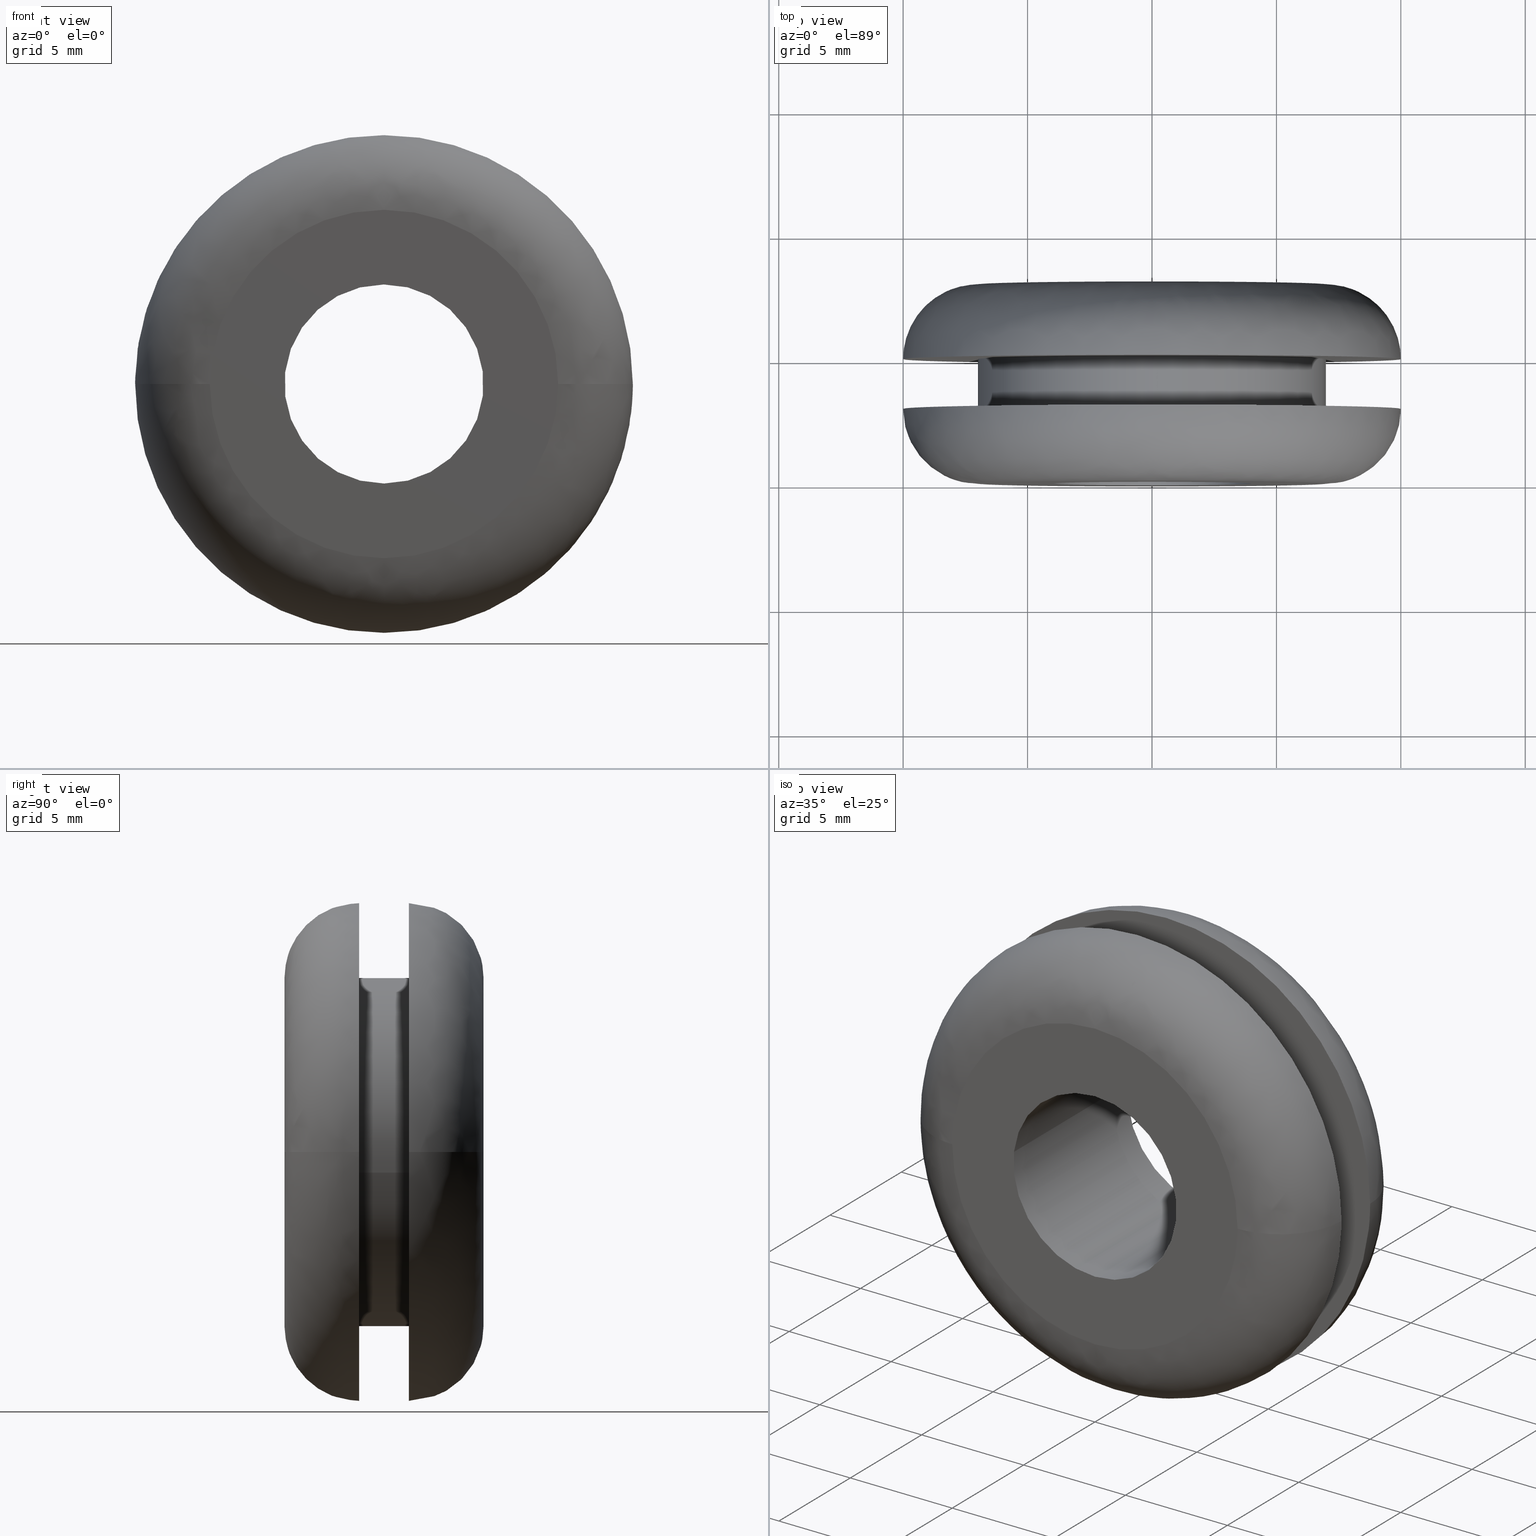
[diagram: canonical four-view strip — front | top / right | iso, engineering-drawing reading convention]
A machine part, canonical four-view strip (front | top / right | iso — engineering-drawing reading convention). The complete STEP part file that produces these views, byte-faithful:
ISO-10303-21;
HEADER;

FILE_DESCRIPTION( (''), '2;1');
FILE_NAME ('PC50.12492.TM_B_8_2_CRUL_3541.stp','2019-12-19T13:38:04',(''),(''),'spGate 15.6.1','','');

FILE_SCHEMA (('AUTOMOTIVE_DESIGN'));
ENDSEC;

DATA;
#10=(GEOMETRIC_REPRESENTATION_CONTEXT(3) GLOBAL_UNCERTAINTY_ASSIGNED_CONTEXT((#11)) GLOBAL_UNIT_ASSIGNED_CONTEXT((#12,#13,#14)) REPRESENTATION_CONTEXT('ID1','3D'));
#11=UNCERTAINTY_MEASURE_WITH_UNIT(LENGTH_MEASURE(0.01),#15,'DISTANCE_ACCURACY_VALUE','Maximum model space distance between geometric entities at asserted connectivities');
#12=(NAMED_UNIT(*) SI_UNIT($,.STERADIAN.) SOLID_ANGLE_UNIT());
#13=(CONVERSION_BASED_UNIT('DEGREE',#16) NAMED_UNIT(#17) PLANE_ANGLE_UNIT());
#14=(LENGTH_UNIT() NAMED_UNIT(*) SI_UNIT(.MILLI.,.METRE.));
#15=(LENGTH_UNIT() NAMED_UNIT(*) SI_UNIT(.MILLI.,.METRE.));
#16=PLANE_ANGLE_MEASURE_WITH_UNIT(PLANE_ANGLE_MEASURE(0.01745329252),#18);
#17=DIMENSIONAL_EXPONENTS(0.0,0.0,0.0,0.0,0.0,0.0,0.0);
#18=(NAMED_UNIT(*) PLANE_ANGLE_UNIT() SI_UNIT($,.RADIAN.));
#19=MANIFOLD_SOLID_BREP('TM_B_8_2',#31);
#20=ADVANCED_BREP_SHAPE_REPRESENTATION('',(#19),#10);
#21=APPLICATION_CONTEXT('');
#22=APPLICATION_PROTOCOL_DEFINITION('International Standard','automotive_design',1999,#21);
#23=PRODUCT_DEFINITION_CONTEXT('',#21,'design');
#24=PRODUCT_CONTEXT('',#21,'mechanical');
#25=PRODUCT('','','',(#24));
#26=PRODUCT_DEFINITION_FORMATION_WITH_SPECIFIED_SOURCE('','',#25,.NOT_KNOWN.);
#27=PRODUCT_RELATED_PRODUCT_CATEGORY('tool','tool',(#25));
#28=PRODUCT_DEFINITION('','',#26,#23);
#29=PRODUCT_DEFINITION_SHAPE('','',#28);
#30=SHAPE_DEFINITION_REPRESENTATION(#29,#20);
#31=CLOSED_SHELL('',(#40,#41,#42,#43,#44,#45,#46,#47,#48,#49,#50,#51));
#32=COLOUR_RGB('',0.00000000000E+000,0.00000000000E+000,0.00000000000E+000);
#33=FILL_AREA_STYLE_COLOUR('',#32);
#34=FILL_AREA_STYLE('',(#33));
#35=SURFACE_STYLE_FILL_AREA(#34);
#36=SURFACE_SIDE_STYLE('',(#35));
#37=SURFACE_STYLE_USAGE(.BOTH.,#36);
#38=PRESENTATION_STYLE_ASSIGNMENT((#37));
#39=STYLED_ITEM('',(#38),#19);
#40=ADVANCED_FACE('',(#53,#54),#52,.F.);
#41=ADVANCED_FACE('',(#64,#65),#63,.F.);
#42=ADVANCED_FACE('',(#75,#76),#74,.F.);
#43=ADVANCED_FACE('',(#86,#87),#85,.F.);
#44=ADVANCED_FACE('',(#97),#96,.T.);
#45=ADVANCED_FACE('',(#107),#106,.T.);
#46=ADVANCED_FACE('',(#117),#116,.F.);
#47=ADVANCED_FACE('',(#127),#126,.F.);
#48=ADVANCED_FACE('',(#137),#136,.T.);
#49=ADVANCED_FACE('',(#147),#146,.T.);
#50=ADVANCED_FACE('',(#157),#156,.T.);
#51=ADVANCED_FACE('',(#167),#166,.T.);
#52=PLANE('',#179);
#53=FACE_OUTER_BOUND('',#180,.T.);
#54=FACE_BOUND('',#181,.T.);
#55=COLOUR_RGB('',1.00000000000E+000,1.00000000000E+000,1.00000000000E+000);
#56=FILL_AREA_STYLE_COLOUR('',#55);
#57=FILL_AREA_STYLE('',(#56));
#58=SURFACE_STYLE_FILL_AREA(#57);
#59=SURFACE_SIDE_STYLE('',(#58));
#60=SURFACE_STYLE_USAGE(.BOTH.,#59);
#61=PRESENTATION_STYLE_ASSIGNMENT((#60));
#62=STYLED_ITEM('',(#61),#40);
#63=PLANE('',#185);
#64=FACE_OUTER_BOUND('',#186,.T.);
#65=FACE_BOUND('',#187,.T.);
#66=COLOUR_RGB('',1.00000000000E+000,1.00000000000E+000,1.00000000000E+000);
#67=FILL_AREA_STYLE_COLOUR('',#66);
#68=FILL_AREA_STYLE('',(#67));
#69=SURFACE_STYLE_FILL_AREA(#68);
#70=SURFACE_SIDE_STYLE('',(#69));
#71=SURFACE_STYLE_USAGE(.BOTH.,#70);
#72=PRESENTATION_STYLE_ASSIGNMENT((#71));
#73=STYLED_ITEM('',(#72),#41);
#74=PLANE('',#191);
#75=FACE_OUTER_BOUND('',#192,.T.);
#76=FACE_BOUND('',#193,.T.);
#77=COLOUR_RGB('',1.00000000000E+000,1.00000000000E+000,1.00000000000E+000);
#78=FILL_AREA_STYLE_COLOUR('',#77);
#79=FILL_AREA_STYLE('',(#78));
#80=SURFACE_STYLE_FILL_AREA(#79);
#81=SURFACE_SIDE_STYLE('',(#80));
#82=SURFACE_STYLE_USAGE(.BOTH.,#81);
#83=PRESENTATION_STYLE_ASSIGNMENT((#82));
#84=STYLED_ITEM('',(#83),#42);
#85=PLANE('',#197);
#86=FACE_OUTER_BOUND('',#198,.T.);
#87=FACE_BOUND('',#199,.T.);
#88=COLOUR_RGB('',1.00000000000E+000,1.00000000000E+000,1.00000000000E+000);
#89=FILL_AREA_STYLE_COLOUR('',#88);
#90=FILL_AREA_STYLE('',(#89));
#91=SURFACE_STYLE_FILL_AREA(#90);
#92=SURFACE_SIDE_STYLE('',(#91));
#93=SURFACE_STYLE_USAGE(.BOTH.,#92);
#94=PRESENTATION_STYLE_ASSIGNMENT((#93));
#95=STYLED_ITEM('',(#94),#43);
#96=CYLINDRICAL_SURFACE('',#203,7.00000000000E+000);
#97=FACE_OUTER_BOUND('',#204,.T.);
#98=COLOUR_RGB('',1.00000000000E+000,1.00000000000E+000,1.00000000000E+000);
#99=FILL_AREA_STYLE_COLOUR('',#98);
#100=FILL_AREA_STYLE('',(#99));
#101=SURFACE_STYLE_FILL_AREA(#100);
#102=SURFACE_SIDE_STYLE('',(#101));
#103=SURFACE_STYLE_USAGE(.BOTH.,#102);
#104=PRESENTATION_STYLE_ASSIGNMENT((#103));
#105=STYLED_ITEM('',(#104),#44);
#106=CYLINDRICAL_SURFACE('',#208,7.00000000000E+000);
#107=FACE_OUTER_BOUND('',#209,.T.);
#108=COLOUR_RGB('',1.00000000000E+000,1.00000000000E+000,1.00000000000E+000);
#109=FILL_AREA_STYLE_COLOUR('',#108);
#110=FILL_AREA_STYLE('',(#109));
#111=SURFACE_STYLE_FILL_AREA(#110);
#112=SURFACE_SIDE_STYLE('',(#111));
#113=SURFACE_STYLE_USAGE(.BOTH.,#112);
#114=PRESENTATION_STYLE_ASSIGNMENT((#113));
#115=STYLED_ITEM('',(#114),#45);
#116=CYLINDRICAL_SURFACE('',#213,4.00000000000E+000);
#117=FACE_OUTER_BOUND('',#214,.T.);
#118=COLOUR_RGB('',1.00000000000E+000,1.00000000000E+000,1.00000000000E+000);
#119=FILL_AREA_STYLE_COLOUR('',#118);
#120=FILL_AREA_STYLE('',(#119));
#121=SURFACE_STYLE_FILL_AREA(#120);
#122=SURFACE_SIDE_STYLE('',(#121));
#123=SURFACE_STYLE_USAGE(.BOTH.,#122);
#124=PRESENTATION_STYLE_ASSIGNMENT((#123));
#125=STYLED_ITEM('',(#124),#46);
#126=CYLINDRICAL_SURFACE('',#218,4.00000000000E+000);
#127=FACE_OUTER_BOUND('',#219,.T.);
#128=COLOUR_RGB('',1.00000000000E+000,1.00000000000E+000,1.00000000000E+000);
#129=FILL_AREA_STYLE_COLOUR('',#128);
#130=FILL_AREA_STYLE('',(#129));
#131=SURFACE_STYLE_FILL_AREA(#130);
#132=SURFACE_SIDE_STYLE('',(#131));
#133=SURFACE_STYLE_USAGE(.BOTH.,#132);
#134=PRESENTATION_STYLE_ASSIGNMENT((#133));
#135=STYLED_ITEM('',(#134),#47);
#136=( BOUNDED_SURFACE() B_SPLINE_SURFACE( 2,2,((#220,#221,#222,#223,#224),(#225,#226,#227,#228,#229),(#230,#231,#232,#233,#234),(#235,#236,#237,#238,#239),(#240,#241,#242,#243,#244)), .UNSPECIFIED.,.F.,.F.,.F.) B_SPLINE_SURFACE_WITH_KNOTS((3,2,3),(3,2,3),(0.00000000000E+000,5.00000000000E-001,1.00000000000E+000),(0.00000000000E+000,5.00000000000E-001,1.00000000000E+000), .UNSPECIFIED. ) GEOMETRIC_REPRESENTATION_ITEM() RATIONAL_B_SPLINE_SURFACE(((1.00000000000E+000,7.07106781055E-001,1.00000000000E+000,7.07106781055E-001,1.00000000000E+000),(7.07106781187E-001,4.99999999907E-001,7.07106781187E-001,4.99999999907E-001,7.07106781187E-001),(1.00000000000E+000,7.07106781055E-001,1.00000000000E+000,7.07106781055E-001,1.00000000000E+000),(7.07106781187E-001,4.99999999907E-001,7.07106781187E-001,4.99999999907E-001,7.07106781187E-001),(1.00000000000E+000,7.07106781055E-001,1.00000000000E+000,7.07106781055E-001,1.00000000000E+000))) REPRESENTATION_ITEM('') SURFACE() );
#137=FACE_OUTER_BOUND('',#245,.T.);
#138=COLOUR_RGB('',1.00000000000E+000,1.00000000000E+000,1.00000000000E+000);
#139=FILL_AREA_STYLE_COLOUR('',#138);
#140=FILL_AREA_STYLE('',(#139));
#141=SURFACE_STYLE_FILL_AREA(#140);
#142=SURFACE_SIDE_STYLE('',(#141));
#143=SURFACE_STYLE_USAGE(.BOTH.,#142);
#144=PRESENTATION_STYLE_ASSIGNMENT((#143));
#145=STYLED_ITEM('',(#144),#48);
#146=( BOUNDED_SURFACE() B_SPLINE_SURFACE( 2,2,((#246,#247,#248,#249,#250),(#251,#252,#253,#254,#255),(#256,#257,#258,#259,#260),(#261,#262,#263,#264,#265),(#266,#267,#268,#269,#270)), .UNSPECIFIED.,.F.,.F.,.F.) B_SPLINE_SURFACE_WITH_KNOTS((3,2,3),(3,2,3),(0.00000000000E+000,5.00000000000E-001,1.00000000000E+000),(0.00000000000E+000,5.00000000000E-001,1.00000000000E+000), .UNSPECIFIED. ) GEOMETRIC_REPRESENTATION_ITEM() RATIONAL_B_SPLINE_SURFACE(((1.00000000000E+000,7.07106781055E-001,1.00000000000E+000,7.07106781055E-001,1.00000000000E+000),(7.07106781187E-001,4.99999999907E-001,7.07106781187E-001,4.99999999907E-001,7.07106781187E-001),(1.00000000000E+000,7.07106781055E-001,1.00000000000E+000,7.07106781055E-001,1.00000000000E+000),(7.07106781187E-001,4.99999999907E-001,7.07106781187E-001,4.99999999907E-001,7.07106781187E-001),(1.00000000000E+000,7.07106781055E-001,1.00000000000E+000,7.07106781055E-001,1.00000000000E+000))) REPRESENTATION_ITEM('') SURFACE() );
#147=FACE_OUTER_BOUND('',#271,.T.);
#148=COLOUR_RGB('',1.00000000000E+000,1.00000000000E+000,1.00000000000E+000);
#149=FILL_AREA_STYLE_COLOUR('',#148);
#150=FILL_AREA_STYLE('',(#149));
#151=SURFACE_STYLE_FILL_AREA(#150);
#152=SURFACE_SIDE_STYLE('',(#151));
#153=SURFACE_STYLE_USAGE(.BOTH.,#152);
#154=PRESENTATION_STYLE_ASSIGNMENT((#153));
#155=STYLED_ITEM('',(#154),#49);
#156=( BOUNDED_SURFACE() B_SPLINE_SURFACE( 2,2,((#272,#273,#274,#275,#276),(#277,#278,#279,#280,#281),(#282,#283,#284,#285,#286),(#287,#288,#289,#290,#291),(#292,#293,#294,#295,#296)), .UNSPECIFIED.,.F.,.F.,.F.) B_SPLINE_SURFACE_WITH_KNOTS((3,2,3),(3,2,3),(-1.57079701149E+000,-1.04711990935E+000,2.32925527740E-004),(0.00000000000E+000,1.57079632679E+000,3.14159265359E+000), .UNSPECIFIED. ) GEOMETRIC_REPRESENTATION_ITEM() RATIONAL_B_SPLINE_SURFACE(((9.32993290127E-001,6.59725882250E-001,9.32993290127E-001,6.59725882250E-001,9.32993290127E-001),(9.32993202517E-001,6.59725820301E-001,9.32993202517E-001,6.59725820301E-001,9.32993202517E-001),(1.00000000000E+000,7.07106781187E-001,1.00000000000E+000,7.07106781187E-001,1.00000000000E+000),(8.65986580253E-001,6.12344983313E-001,8.65986580253E-001,6.12344983313E-001,8.65986580253E-001),(1.00000000000E+000,7.07106781187E-001,1.00000000000E+000,7.07106781187E-001,1.00000000000E+000))) REPRESENTATION_ITEM('') SURFACE() );
#157=FACE_OUTER_BOUND('',#297,.T.);
#158=COLOUR_RGB('',1.00000000000E+000,1.00000000000E+000,1.00000000000E+000);
#159=FILL_AREA_STYLE_COLOUR('',#158);
#160=FILL_AREA_STYLE('',(#159));
#161=SURFACE_STYLE_FILL_AREA(#160);
#162=SURFACE_SIDE_STYLE('',(#161));
#163=SURFACE_STYLE_USAGE(.BOTH.,#162);
#164=PRESENTATION_STYLE_ASSIGNMENT((#163));
#165=STYLED_ITEM('',(#164),#50);
#166=( BOUNDED_SURFACE() B_SPLINE_SURFACE( 2,2,((#298,#299,#300,#301,#302),(#303,#304,#305,#306,#307),(#308,#309,#310,#311,#312),(#313,#314,#315,#316,#317),(#318,#319,#320,#321,#322)), .UNSPECIFIED.,.F.,.F.,.F.) B_SPLINE_SURFACE_WITH_KNOTS((3,2,3),(3,2,3),(-1.57079701149E+000,-1.04711990935E+000,2.32925527740E-004),(3.14159265359E+000,4.71238898038E+000,6.28318530718E+000), .UNSPECIFIED. ) GEOMETRIC_REPRESENTATION_ITEM() RATIONAL_B_SPLINE_SURFACE(((9.32993290127E-001,6.59725882250E-001,9.32993290127E-001,6.59725882250E-001,9.32993290127E-001),(9.32993202517E-001,6.59725820301E-001,9.32993202517E-001,6.59725820301E-001,9.32993202517E-001),(1.00000000000E+000,7.07106781187E-001,1.00000000000E+000,7.07106781187E-001,1.00000000000E+000),(8.65986580253E-001,6.12344983313E-001,8.65986580253E-001,6.12344983313E-001,8.65986580253E-001),(1.00000000000E+000,7.07106781187E-001,1.00000000000E+000,7.07106781187E-001,1.00000000000E+000))) REPRESENTATION_ITEM('') SURFACE() );
#167=FACE_OUTER_BOUND('',#323,.T.);
#168=COLOUR_RGB('',1.00000000000E+000,1.00000000000E+000,1.00000000000E+000);
#169=FILL_AREA_STYLE_COLOUR('',#168);
#170=FILL_AREA_STYLE('',(#169));
#171=SURFACE_STYLE_FILL_AREA(#170);
#172=SURFACE_SIDE_STYLE('',(#171));
#173=SURFACE_STYLE_USAGE(.BOTH.,#172);
#174=PRESENTATION_STYLE_ASSIGNMENT((#173));
#175=STYLED_ITEM('',(#174),#51);
#176=CARTESIAN_POINT('',(-1.21229744099E+001,5.00000000000E+000,-1.20000000000E+001));
#177=DIRECTION('',(0.00000000000E+000,1.00000000000E+000,0.00000000000E+000));
#178=DIRECTION('',(0.00000000000E+000,0.00000000000E+000,1.00000000000E+000));
#179=AXIS2_PLACEMENT_3D('',#176,#177,#178);
#180=EDGE_LOOP('',(#324,#325,#326,#327,#328));
#181=EDGE_LOOP('',(#329,#330,#331));
#182=CARTESIAN_POINT('',(-1.45492268009E+001,8.00000000000E+000,1.61000000115E+001));
#183=DIRECTION('',(0.00000000000E+000,-1.00000000000E+000,0.00000000000E+000));
#184=DIRECTION('',(0.00000000000E+000,0.00000000000E+000,-1.00000000000E+000));
#185=AXIS2_PLACEMENT_3D('',#182,#183,#184);
#186=EDGE_LOOP('',(#332,#333,#334));
#187=EDGE_LOOP('',(#335,#336,#337));
#188=CARTESIAN_POINT('',(-1.23054473375E+001,3.00000000000E+000,1.20000000000E+001));
#189=DIRECTION('',(0.00000000000E+000,-1.00000000000E+000,0.00000000000E+000));
#190=DIRECTION('',(0.00000000000E+000,0.00000000000E+000,-1.00000000000E+000));
#191=AXIS2_PLACEMENT_3D('',#188,#189,#190);
#192=EDGE_LOOP('',(#338,#339,#340,#341,#342,#343));
#193=EDGE_LOOP('',(#344,#345,#346));
#194=CARTESIAN_POINT('',(-1.45492267837E+001,-1.03351600000E-015,-1.61000000001E+001));
#195=DIRECTION('',(0.00000000000E+000,1.00000000000E+000,0.00000000000E+000));
#196=DIRECTION('',(0.00000000000E+000,0.00000000000E+000,1.00000000000E+000));
#197=AXIS2_PLACEMENT_3D('',#194,#195,#196);
#198=EDGE_LOOP('',(#347,#348,#349));
#199=EDGE_LOOP('',(#350,#351,#352));
#200=CARTESIAN_POINT('',(8.79729987986E-016,5.05000000000E+000,3.84147099862E-015));
#201=DIRECTION('',(5.43437676870E-016,1.00000000000E+000,5.10936600355E-015));
#202=DIRECTION('',(-9.93009526364E-001,-6.34413156929E-017,1.18034234657E-001));
#203=AXIS2_PLACEMENT_3D('',#200,#201,#202);
#204=EDGE_LOOP('',(#353,#354,#355,#356));
#205=CARTESIAN_POINT('',(8.79729987986E-016,5.05000000000E+000,3.84147099862E-015));
#206=DIRECTION('',(5.43437676870E-016,1.00000000000E+000,5.10936600355E-015));
#207=DIRECTION('',(-9.93009526364E-001,-6.34413156929E-017,1.18034234657E-001));
#208=AXIS2_PLACEMENT_3D('',#205,#206,#207);
#209=EDGE_LOOP('',(#357,#358,#359,#360,#361,#362));
#210=CARTESIAN_POINT('',(3.77633036272E-015,8.20000000000E+000,3.36809805822E-014));
#211=DIRECTION('',(8.41627251169E-016,1.00000000000E+000,8.02111508812E-015));
#212=DIRECTION('',(-9.93009526364E-001,-1.11022302463E-016,1.18034234657E-001));
#213=AXIS2_PLACEMENT_3D('',#210,#211,#212);
#214=EDGE_LOOP('',(#363,#364,#365,#366));
#215=CARTESIAN_POINT('',(3.77633036272E-015,8.20000000000E+000,3.36809805822E-014));
#216=DIRECTION('',(8.41627251169E-016,1.00000000000E+000,8.02111508812E-015));
#217=DIRECTION('',(-9.93009526364E-001,-1.11022302463E-016,1.18034234657E-001));
#218=AXIS2_PLACEMENT_3D('',#215,#216,#217);
#219=EDGE_LOOP('',(#367,#368,#369,#370,#371,#372));
#220=CARTESIAN_POINT('',(-1.00000000000E+001,3.00000000000E+000,-3.79958651348E-015));
#221=CARTESIAN_POINT('',(-1.00000000000E+001,-1.11198846633E-009,-4.43401791642E-015));
#222=CARTESIAN_POINT('',(-6.99999999889E+000,2.66453525910E-015,-4.06663600990E-015));
#223=CARTESIAN_POINT('',(-3.99999999778E+000,1.11199411866E-009,-3.69925410338E-015));
#224=CARTESIAN_POINT('',(-4.00000000000E+000,3.00000000222E+000,-3.06482270071E-015));
#225=CARTESIAN_POINT('',(-1.00000000000E+001,3.00000000000E+000,-1.00000000000E+001));
#226=CARTESIAN_POINT('',(-1.00000000000E+001,-1.11198653759E-009,-1.00000000000E+001));
#227=CARTESIAN_POINT('',(-6.99999999889E+000,3.84441556344E-015,-6.99999999889E+000));
#228=CARTESIAN_POINT('',(-3.99999999778E+000,1.11199526698E-009,-3.99999999778E+000));
#229=CARTESIAN_POINT('',(-4.00000000000E+000,3.00000000222E+000,-4.00000000000E+000));
#230=CARTESIAN_POINT('',(-1.98980225972E-015,3.00000000000E+000,-1.00000000000E+001));
#231=CARTESIAN_POINT('',(-2.65695287611E-015,-1.11198846633E-009,-1.00000000000E+001));
#232=CARTESIAN_POINT('',(-2.84063776221E-015,2.66453525910E-015,-6.99999999889E+000));
#233=CARTESIAN_POINT('',(-3.02432264830E-015,1.11199411866E-009,-3.99999999778E+000));
#234=CARTESIAN_POINT('',(-2.35717203177E-015,3.00000000222E+000,-4.00000000000E+000));
#235=CARTESIAN_POINT('',(1.00000000000E+001,3.00000000000E+000,-1.00000000000E+001));
#236=CARTESIAN_POINT('',(1.00000000000E+001,-1.11199123862E-009,-1.00000000000E+001));
#237=CARTESIAN_POINT('',(6.99999999889E+000,8.88178419700E-016,-6.99999999889E+000));
#238=CARTESIAN_POINT('',(3.99999999778E+000,1.11199349063E-009,-3.99999999778E+000));
#239=CARTESIAN_POINT('',(4.00000000000E+000,3.00000000222E+000,-4.00000000000E+000));
#240=CARTESIAN_POINT('',(1.00000000000E+001,3.00000000000E+000,-2.57502060498E-015));
#241=CARTESIAN_POINT('',(1.00000000000E+001,-1.11199286259E-009,-3.20945200792E-015));
#242=CARTESIAN_POINT('',(6.99999999889E+000,-4.44089209850E-016,-3.20943987409E-015));
#243=CARTESIAN_POINT('',(3.99999999778E+000,1.11199223455E-009,-3.20942774026E-015));
#244=CARTESIAN_POINT('',(4.00000000000E+000,3.00000000222E+000,-2.57499633731E-015));
#245=EDGE_LOOP('',(#373,#374,#375,#376,#377,#378));
#246=CARTESIAN_POINT('',(1.00000000000E+001,3.00000000000E+000,-2.57502060498E-015));
#247=CARTESIAN_POINT('',(1.00000000000E+001,-1.11199349063E-009,-3.20945200792E-015));
#248=CARTESIAN_POINT('',(6.99999999889E+000,-8.88178419700E-016,-3.20943987409E-015));
#249=CARTESIAN_POINT('',(3.99999999778E+000,1.11199160652E-009,-3.20942774026E-015));
#250=CARTESIAN_POINT('',(4.00000000000E+000,3.00000000222E+000,-2.57499633731E-015));
#251=CARTESIAN_POINT('',(1.00000000000E+001,3.00000000000E+000,1.00000000000E+001));
#252=CARTESIAN_POINT('',(1.00000000000E+001,-1.11199541937E-009,1.00000000000E+001));
#253=CARTESIAN_POINT('',(6.99999999889E+000,-2.06805872404E-015,6.99999999889E+000));
#254=CARTESIAN_POINT('',(3.99999999778E+000,1.11199045820E-009,3.99999999778E+000));
#255=CARTESIAN_POINT('',(4.00000000000E+000,3.00000000222E+000,4.00000000000E+000));
#256=CARTESIAN_POINT('',(-1.98972136907E-015,3.00000000000E+000,1.00000000000E+001));
#257=CARTESIAN_POINT('',(-2.65687198546E-015,-1.11199349063E-009,1.00000000000E+001));
#258=CARTESIAN_POINT('',(-2.84058113875E-015,-8.88178419700E-016,6.99999999889E+000));
#259=CARTESIAN_POINT('',(-3.02429029204E-015,1.11199160652E-009,3.99999999778E+000));
#260=CARTESIAN_POINT('',(-2.35713967551E-015,3.00000000222E+000,4.00000000000E+000));
#261=CARTESIAN_POINT('',(-1.00000000000E+001,3.00000000000E+000,1.00000000000E+001));
#262=CARTESIAN_POINT('',(-1.00000000000E+001,-1.11199071834E-009,1.00000000000E+001));
#263=CARTESIAN_POINT('',(-6.99999999889E+000,8.88178419700E-016,6.99999999889E+000));
#264=CARTESIAN_POINT('',(-3.99999999778E+000,1.11199223455E-009,3.99999999778E+000));
#265=CARTESIAN_POINT('',(-4.00000000000E+000,3.00000000222E+000,4.00000000000E+000));
#266=CARTESIAN_POINT('',(-1.00000000000E+001,3.00000000000E+000,-1.35029291518E-015));
#267=CARTESIAN_POINT('',(-1.00000000000E+001,-1.11198909437E-009,-1.98472431813E-015));
#268=CARTESIAN_POINT('',(-6.99999999889E+000,2.22044604925E-015,-2.35213049137E-015));
#269=CARTESIAN_POINT('',(-3.99999999778E+000,1.11199349063E-009,-2.71953666461E-015));
#270=CARTESIAN_POINT('',(-4.00000000000E+000,3.00000000222E+000,-2.08510526139E-015));
#271=EDGE_LOOP('',(#379,#380,#381,#382,#383,#384,#385));
#272=CARTESIAN_POINT('',(-6.99999789766E+000,8.00000000000E+000,-4.43818416761E-016));
#273=CARTESIAN_POINT('',(-6.99999789766E+000,8.00000000000E+000,6.99999789766E+000));
#274=CARTESIAN_POINT('',(-1.43852894147E-013,8.00000000000E+000,6.99999789766E+000));
#275=CARTESIAN_POINT('',(6.99999789766E+000,8.00000000000E+000,6.99999789766E+000));
#276=CARTESIAN_POINT('',(6.99999789766E+000,8.00000000000E+000,-2.15826679720E-015));
#277=CARTESIAN_POINT('',(-7.80397142733E+000,8.00000056341E+000,-3.45363307487E-016));
#278=CARTESIAN_POINT('',(-7.80397142733E+000,8.00000056341E+000,7.80397142733E+000));
#279=CARTESIAN_POINT('',(-1.43754396007E-013,8.00000056341E+000,7.80397142733E+000));
#280=CARTESIAN_POINT('',(7.80397142733E+000,8.00000056341E+000,7.80397142733E+000));
#281=CARTESIAN_POINT('',(7.80397142733E+000,8.00000056341E+000,-2.25672190648E-015));
#282=CARTESIAN_POINT('',(-8.50020171490E+000,7.59795974076E+000,-2.60102504098E-016));
#283=CARTESIAN_POINT('',(-8.50020171490E+000,7.59795974076E+000,8.50020171490E+000));
#284=CARTESIAN_POINT('',(-1.74374706963E-013,7.59795974076E+000,8.50020171490E+000));
#285=CARTESIAN_POINT('',(8.50020171490E+000,7.59795974076E+000,8.50020171490E+000));
#286=CARTESIAN_POINT('',(8.50020171490E+000,7.59795974076E+000,-2.34198270987E-015));
#287=CARTESIAN_POINT('',(-1.00004034298E+001,6.73166256529E+000,-7.63868488899E-017));
#288=CARTESIAN_POINT('',(-1.00004034298E+001,6.73166256529E+000,1.00004034298E+001));
#289=CARTESIAN_POINT('',(-2.40353800124E-013,6.73166256529E+000,1.00004034298E+001));
#290=CARTESIAN_POINT('',(1.00004034298E+001,6.73166256529E+000,1.00004034298E+001));
#291=CARTESIAN_POINT('',(1.00004034298E+001,6.73166256529E+000,-2.52569836508E-015));
#292=CARTESIAN_POINT('',(-9.99999991862E+000,4.99930122342E+000,-7.64362631262E-017));
#293=CARTESIAN_POINT('',(-9.99999991862E+000,4.99930122342E+000,9.99999991862E+000));
#294=CARTESIAN_POINT('',(-3.72661671276E-013,4.99930122342E+000,9.99999991862E+000));
#295=CARTESIAN_POINT('',(9.99999991862E+000,4.99930122342E+000,9.99999991862E+000));
#296=CARTESIAN_POINT('',(9.99999991862E+000,4.99930122342E+000,-2.52564895084E-015));
#297=EDGE_LOOP('',(#386,#387,#388,#389,#390));
#298=CARTESIAN_POINT('',(6.99999789766E+000,8.00000000000E+000,-2.15826679720E-015));
#299=CARTESIAN_POINT('',(6.99999789766E+000,8.00000000000E+000,-6.99999789766E+000));
#300=CARTESIAN_POINT('',(-1.45567342527E-013,8.00000000000E+000,-6.99999789766E+000));
#301=CARTESIAN_POINT('',(-6.99999789766E+000,8.00000000000E+000,-6.99999789766E+000));
#302=CARTESIAN_POINT('',(-6.99999789766E+000,8.00000000000E+000,-4.43818416761E-016));
#303=CARTESIAN_POINT('',(7.80397142733E+000,8.00000056341E+000,-2.25672190648E-015));
#304=CARTESIAN_POINT('',(7.80397142733E+000,8.00000056341E+000,-7.80397142733E+000));
#305=CARTESIAN_POINT('',(-1.45665754606E-013,8.00000056341E+000,-7.80397142733E+000));
#306=CARTESIAN_POINT('',(-7.80397142733E+000,8.00000056341E+000,-7.80397142733E+000));
#307=CARTESIAN_POINT('',(-7.80397142733E+000,8.00000056341E+000,-3.45363307487E-016));
#308=CARTESIAN_POINT('',(8.50020171490E+000,7.59795974076E+000,-2.34198270987E-015));
#309=CARTESIAN_POINT('',(8.50020171490E+000,7.59795974076E+000,-8.50020171490E+000));
#310=CARTESIAN_POINT('',(-1.76456587168E-013,7.59795974076E+000,-8.50020171490E+000));
#311=CARTESIAN_POINT('',(-8.50020171490E+000,7.59795974076E+000,-8.50020171490E+000));
#312=CARTESIAN_POINT('',(-8.50020171490E+000,7.59795974076E+000,-2.60102504098E-016));
#313=CARTESIAN_POINT('',(1.00004034298E+001,6.73166256529E+000,-2.52569836508E-015));
#314=CARTESIAN_POINT('',(1.00004034298E+001,6.73166256529E+000,-1.00004034298E+001));
#315=CARTESIAN_POINT('',(-2.42803111640E-013,6.73166256529E+000,-1.00004034298E+001));
#316=CARTESIAN_POINT('',(-1.00004034298E+001,6.73166256529E+000,-1.00004034298E+001));
#317=CARTESIAN_POINT('',(-1.00004034298E+001,6.73166256529E+000,-7.63868488899E-017));
#318=CARTESIAN_POINT('',(9.99999991862E+000,4.99930122342E+000,-2.52564895084E-015));
#319=CARTESIAN_POINT('',(9.99999991862E+000,4.99930122342E+000,-9.99999991862E+000));
#320=CARTESIAN_POINT('',(-3.75110883963E-013,4.99930122342E+000,-9.99999991862E+000));
#321=CARTESIAN_POINT('',(-9.99999991862E+000,4.99930122342E+000,-9.99999991862E+000));
#322=CARTESIAN_POINT('',(-9.99999991862E+000,4.99930122342E+000,-7.64362631262E-017));
#323=EDGE_LOOP('',(#391,#392,#393,#394,#395,#396,#397));
#324=ORIENTED_EDGE('',*,*,#398,.T.);
#325=ORIENTED_EDGE('',*,*,#399,.T.);
#326=ORIENTED_EDGE('',*,*,#400,.T.);
#327=ORIENTED_EDGE('',*,*,#401,.T.);
#328=ORIENTED_EDGE('',*,*,#402,.T.);
#329=ORIENTED_EDGE('',*,*,#403,.F.);
#330=ORIENTED_EDGE('',*,*,#404,.F.);
#331=ORIENTED_EDGE('',*,*,#405,.F.);
#332=ORIENTED_EDGE('',*,*,#406,.F.);
#333=ORIENTED_EDGE('',*,*,#407,.F.);
#334=ORIENTED_EDGE('',*,*,#408,.F.);
#335=ORIENTED_EDGE('',*,*,#409,.T.);
#336=ORIENTED_EDGE('',*,*,#410,.T.);
#337=ORIENTED_EDGE('',*,*,#411,.T.);
#338=ORIENTED_EDGE('',*,*,#412,.F.);
#339=ORIENTED_EDGE('',*,*,#413,.F.);
#340=ORIENTED_EDGE('',*,*,#414,.F.);
#341=ORIENTED_EDGE('',*,*,#415,.F.);
#342=ORIENTED_EDGE('',*,*,#416,.F.);
#343=ORIENTED_EDGE('',*,*,#417,.F.);
#344=ORIENTED_EDGE('',*,*,#418,.T.);
#345=ORIENTED_EDGE('',*,*,#419,.T.);
#346=ORIENTED_EDGE('',*,*,#420,.T.);
#347=ORIENTED_EDGE('',*,*,#421,.T.);
#348=ORIENTED_EDGE('',*,*,#422,.T.);
#349=ORIENTED_EDGE('',*,*,#423,.T.);
#350=ORIENTED_EDGE('',*,*,#424,.F.);
#351=ORIENTED_EDGE('',*,*,#425,.F.);
#352=ORIENTED_EDGE('',*,*,#426,.F.);
#353=ORIENTED_EDGE('',*,*,#404,.T.);
#354=ORIENTED_EDGE('',*,*,#427,.F.);
#355=ORIENTED_EDGE('',*,*,#419,.F.);
#356=ORIENTED_EDGE('',*,*,#428,.T.);
#357=ORIENTED_EDGE('',*,*,#418,.F.);
#358=ORIENTED_EDGE('',*,*,#420,.F.);
#359=ORIENTED_EDGE('',*,*,#427,.T.);
#360=ORIENTED_EDGE('',*,*,#403,.T.);
#361=ORIENTED_EDGE('',*,*,#405,.T.);
#362=ORIENTED_EDGE('',*,*,#428,.F.);
#363=ORIENTED_EDGE('',*,*,#425,.T.);
#364=ORIENTED_EDGE('',*,*,#429,.T.);
#365=ORIENTED_EDGE('',*,*,#410,.F.);
#366=ORIENTED_EDGE('',*,*,#430,.F.);
#367=ORIENTED_EDGE('',*,*,#409,.F.);
#368=ORIENTED_EDGE('',*,*,#411,.F.);
#369=ORIENTED_EDGE('',*,*,#429,.F.);
#370=ORIENTED_EDGE('',*,*,#424,.T.);
#371=ORIENTED_EDGE('',*,*,#426,.T.);
#372=ORIENTED_EDGE('',*,*,#430,.T.);
#373=ORIENTED_EDGE('',*,*,#422,.F.);
#374=ORIENTED_EDGE('',*,*,#431,.F.);
#375=ORIENTED_EDGE('',*,*,#412,.T.);
#376=ORIENTED_EDGE('',*,*,#417,.T.);
#377=ORIENTED_EDGE('',*,*,#416,.T.);
#378=ORIENTED_EDGE('',*,*,#432,.T.);
#379=ORIENTED_EDGE('',*,*,#415,.T.);
#380=ORIENTED_EDGE('',*,*,#414,.T.);
#381=ORIENTED_EDGE('',*,*,#413,.T.);
#382=ORIENTED_EDGE('',*,*,#431,.T.);
#383=ORIENTED_EDGE('',*,*,#421,.F.);
#384=ORIENTED_EDGE('',*,*,#423,.F.);
#385=ORIENTED_EDGE('',*,*,#432,.F.);
#386=ORIENTED_EDGE('',*,*,#407,.T.);
#387=ORIENTED_EDGE('',*,*,#433,.T.);
#388=ORIENTED_EDGE('',*,*,#401,.F.);
#389=ORIENTED_EDGE('',*,*,#400,.F.);
#390=ORIENTED_EDGE('',*,*,#434,.F.);
#391=ORIENTED_EDGE('',*,*,#399,.F.);
#392=ORIENTED_EDGE('',*,*,#398,.F.);
#393=ORIENTED_EDGE('',*,*,#402,.F.);
#394=ORIENTED_EDGE('',*,*,#433,.F.);
#395=ORIENTED_EDGE('',*,*,#406,.T.);
#396=ORIENTED_EDGE('',*,*,#408,.T.);
#397=ORIENTED_EDGE('',*,*,#434,.T.);
#398=EDGE_CURVE('',#435,#436,#437,.T.);
#399=EDGE_CURVE('',#436,#443,#444,.T.);
#400=EDGE_CURVE('',#443,#450,#451,.T.);
#401=EDGE_CURVE('',#450,#457,#458,.T.);
#402=EDGE_CURVE('',#457,#435,#464,.T.);
#403=EDGE_CURVE('',#470,#471,#472,.T.);
#404=EDGE_CURVE('',#478,#470,#479,.T.);
#405=EDGE_CURVE('',#471,#478,#485,.T.);
#406=EDGE_CURVE('',#491,#492,#493,.T.);
#407=EDGE_CURVE('',#499,#491,#500,.T.);
#408=EDGE_CURVE('',#492,#499,#506,.T.);
#409=EDGE_CURVE('',#512,#513,#514,.T.);
#410=EDGE_CURVE('',#513,#520,#521,.T.);
#411=EDGE_CURVE('',#520,#512,#527,.T.);
#412=EDGE_CURVE('',#533,#534,#535,.T.);
#413=EDGE_CURVE('',#541,#533,#542,.T.);
#414=EDGE_CURVE('',#548,#541,#549,.T.);
#415=EDGE_CURVE('',#555,#548,#556,.T.);
#416=EDGE_CURVE('',#562,#555,#563,.T.);
#417=EDGE_CURVE('',#534,#562,#569,.T.);
#418=EDGE_CURVE('',#575,#576,#577,.T.);
#419=EDGE_CURVE('',#576,#583,#584,.T.);
#420=EDGE_CURVE('',#583,#575,#590,.T.);
#421=EDGE_CURVE('',#596,#597,#598,.T.);
#422=EDGE_CURVE('',#597,#604,#605,.T.);
#423=EDGE_CURVE('',#604,#596,#611,.T.);
#424=EDGE_CURVE('',#617,#618,#619,.T.);
#425=EDGE_CURVE('',#625,#617,#626,.T.);
#426=EDGE_CURVE('',#618,#625,#632,.T.);
#427=EDGE_CURVE('',#583,#470,#638,.T.);
#428=EDGE_CURVE('',#576,#478,#644,.T.);
#429=EDGE_CURVE('',#617,#520,#650,.T.);
#430=EDGE_CURVE('',#625,#513,#656,.T.);
#431=EDGE_CURVE('',#533,#597,#662,.T.);
#432=EDGE_CURVE('',#555,#604,#668,.T.);
#433=EDGE_CURVE('',#491,#457,#674,.T.);
#434=EDGE_CURVE('',#499,#443,#680,.T.);
#435=VERTEX_POINT('',#686);
#436=VERTEX_POINT('',#687);
#437=CIRCLE('',#691,1.00000000000E+001);
#438=COLOUR_RGB('',1.00000000000E+000,1.00000000000E+000,1.00000000000E+000);
#439=DRAUGHTING_PRE_DEFINED_CURVE_FONT('continuous');
#440=CURVE_STYLE( '',#439, POSITIVE_LENGTH_MEASURE(1.00000000000E-006),#438);
#441=PRESENTATION_STYLE_ASSIGNMENT((#440));
#442=STYLED_ITEM('',(#441),#398);
#443=VERTEX_POINT('',#692);
#444=CIRCLE('',#696,1.00000000000E+001);
#445=COLOUR_RGB('',1.00000000000E+000,1.00000000000E+000,1.00000000000E+000);
#446=DRAUGHTING_PRE_DEFINED_CURVE_FONT('continuous');
#447=CURVE_STYLE( '',#446, POSITIVE_LENGTH_MEASURE(1.00000000000E-006),#445);
#448=PRESENTATION_STYLE_ASSIGNMENT((#447));
#449=STYLED_ITEM('',(#448),#399);
#450=VERTEX_POINT('',#697);
#451=CIRCLE('',#701,1.00000000000E+001);
#452=COLOUR_RGB('',1.00000000000E+000,1.00000000000E+000,1.00000000000E+000);
#453=DRAUGHTING_PRE_DEFINED_CURVE_FONT('continuous');
#454=CURVE_STYLE( '',#453, POSITIVE_LENGTH_MEASURE(1.00000000000E-006),#452);
#455=PRESENTATION_STYLE_ASSIGNMENT((#454));
#456=STYLED_ITEM('',(#455),#400);
#457=VERTEX_POINT('',#702);
#458=CIRCLE('',#706,1.00000000000E+001);
#459=COLOUR_RGB('',1.00000000000E+000,1.00000000000E+000,1.00000000000E+000);
#460=DRAUGHTING_PRE_DEFINED_CURVE_FONT('continuous');
#461=CURVE_STYLE( '',#460, POSITIVE_LENGTH_MEASURE(1.00000000000E-006),#459);
#462=PRESENTATION_STYLE_ASSIGNMENT((#461));
#463=STYLED_ITEM('',(#462),#401);
#464=CIRCLE('',#710,1.00000000000E+001);
#465=COLOUR_RGB('',1.00000000000E+000,1.00000000000E+000,1.00000000000E+000);
#466=DRAUGHTING_PRE_DEFINED_CURVE_FONT('continuous');
#467=CURVE_STYLE( '',#466, POSITIVE_LENGTH_MEASURE(1.00000000000E-006),#465);
#468=PRESENTATION_STYLE_ASSIGNMENT((#467));
#469=STYLED_ITEM('',(#468),#402);
#470=VERTEX_POINT('',#711);
#471=VERTEX_POINT('',#712);
#472=CIRCLE('',#716,7.00000000000E+000);
#473=COLOUR_RGB('',1.00000000000E+000,1.00000000000E+000,1.00000000000E+000);
#474=DRAUGHTING_PRE_DEFINED_CURVE_FONT('continuous');
#475=CURVE_STYLE( '',#474, POSITIVE_LENGTH_MEASURE(1.00000000000E-006),#473);
#476=PRESENTATION_STYLE_ASSIGNMENT((#475));
#477=STYLED_ITEM('',(#476),#403);
#478=VERTEX_POINT('',#717);
#479=CIRCLE('',#721,7.00000000000E+000);
#480=COLOUR_RGB('',1.00000000000E+000,1.00000000000E+000,1.00000000000E+000);
#481=DRAUGHTING_PRE_DEFINED_CURVE_FONT('continuous');
#482=CURVE_STYLE( '',#481, POSITIVE_LENGTH_MEASURE(1.00000000000E-006),#480);
#483=PRESENTATION_STYLE_ASSIGNMENT((#482));
#484=STYLED_ITEM('',(#483),#404);
#485=CIRCLE('',#725,7.00000000000E+000);
#486=COLOUR_RGB('',1.00000000000E+000,1.00000000000E+000,1.00000000000E+000);
#487=DRAUGHTING_PRE_DEFINED_CURVE_FONT('continuous');
#488=CURVE_STYLE( '',#487, POSITIVE_LENGTH_MEASURE(1.00000000000E-006),#486);
#489=PRESENTATION_STYLE_ASSIGNMENT((#488));
#490=STYLED_ITEM('',(#489),#405);
#491=VERTEX_POINT('',#726);
#492=VERTEX_POINT('',#727);
#493=CIRCLE('',#731,7.00000000836E+000);
#494=COLOUR_RGB('',1.00000000000E+000,1.00000000000E+000,1.00000000000E+000);
#495=DRAUGHTING_PRE_DEFINED_CURVE_FONT('continuous');
#496=CURVE_STYLE( '',#495, POSITIVE_LENGTH_MEASURE(1.00000000000E-006),#494);
#497=PRESENTATION_STYLE_ASSIGNMENT((#496));
#498=STYLED_ITEM('',(#497),#406);
#499=VERTEX_POINT('',#732);
#500=CIRCLE('',#736,7.00000000836E+000);
#501=COLOUR_RGB('',1.00000000000E+000,1.00000000000E+000,1.00000000000E+000);
#502=DRAUGHTING_PRE_DEFINED_CURVE_FONT('continuous');
#503=CURVE_STYLE( '',#502, POSITIVE_LENGTH_MEASURE(1.00000000000E-006),#501);
#504=PRESENTATION_STYLE_ASSIGNMENT((#503));
#505=STYLED_ITEM('',(#504),#407);
#506=CIRCLE('',#740,7.00000000836E+000);
#507=COLOUR_RGB('',1.00000000000E+000,1.00000000000E+000,1.00000000000E+000);
#508=DRAUGHTING_PRE_DEFINED_CURVE_FONT('continuous');
#509=CURVE_STYLE( '',#508, POSITIVE_LENGTH_MEASURE(1.00000000000E-006),#507);
#510=PRESENTATION_STYLE_ASSIGNMENT((#509));
#511=STYLED_ITEM('',(#510),#408);
#512=VERTEX_POINT('',#741);
#513=VERTEX_POINT('',#742);
#514=CIRCLE('',#746,3.99999999999E+000);
#515=COLOUR_RGB('',1.00000000000E+000,1.00000000000E+000,1.00000000000E+000);
#516=DRAUGHTING_PRE_DEFINED_CURVE_FONT('continuous');
#517=CURVE_STYLE( '',#516, POSITIVE_LENGTH_MEASURE(1.00000000000E-006),#515);
#518=PRESENTATION_STYLE_ASSIGNMENT((#517));
#519=STYLED_ITEM('',(#518),#409);
#520=VERTEX_POINT('',#747);
#521=CIRCLE('',#751,3.99999999999E+000);
#522=COLOUR_RGB('',1.00000000000E+000,1.00000000000E+000,1.00000000000E+000);
#523=DRAUGHTING_PRE_DEFINED_CURVE_FONT('continuous');
#524=CURVE_STYLE( '',#523, POSITIVE_LENGTH_MEASURE(1.00000000000E-006),#522);
#525=PRESENTATION_STYLE_ASSIGNMENT((#524));
#526=STYLED_ITEM('',(#525),#410);
#527=CIRCLE('',#755,3.99999999999E+000);
#528=COLOUR_RGB('',1.00000000000E+000,1.00000000000E+000,1.00000000000E+000);
#529=DRAUGHTING_PRE_DEFINED_CURVE_FONT('continuous');
#530=CURVE_STYLE( '',#529, POSITIVE_LENGTH_MEASURE(1.00000000000E-006),#528);
#531=PRESENTATION_STYLE_ASSIGNMENT((#530));
#532=STYLED_ITEM('',(#531),#411);
#533=VERTEX_POINT('',#756);
#534=VERTEX_POINT('',#757);
#535=CIRCLE('',#761,1.00000000000E+001);
#536=COLOUR_RGB('',1.00000000000E+000,1.00000000000E+000,1.00000000000E+000);
#537=DRAUGHTING_PRE_DEFINED_CURVE_FONT('continuous');
#538=CURVE_STYLE( '',#537, POSITIVE_LENGTH_MEASURE(1.00000000000E-006),#536);
#539=PRESENTATION_STYLE_ASSIGNMENT((#538));
#540=STYLED_ITEM('',(#539),#412);
#541=VERTEX_POINT('',#762);
#542=CIRCLE('',#766,1.00000000000E+001);
#543=COLOUR_RGB('',1.00000000000E+000,1.00000000000E+000,1.00000000000E+000);
#544=DRAUGHTING_PRE_DEFINED_CURVE_FONT('continuous');
#545=CURVE_STYLE( '',#544, POSITIVE_LENGTH_MEASURE(1.00000000000E-006),#543);
#546=PRESENTATION_STYLE_ASSIGNMENT((#545));
#547=STYLED_ITEM('',(#546),#413);
#548=VERTEX_POINT('',#767);
#549=CIRCLE('',#771,1.00000000000E+001);
#550=COLOUR_RGB('',1.00000000000E+000,1.00000000000E+000,1.00000000000E+000);
#551=DRAUGHTING_PRE_DEFINED_CURVE_FONT('continuous');
#552=CURVE_STYLE( '',#551, POSITIVE_LENGTH_MEASURE(1.00000000000E-006),#550);
#553=PRESENTATION_STYLE_ASSIGNMENT((#552));
#554=STYLED_ITEM('',(#553),#414);
#555=VERTEX_POINT('',#772);
#556=CIRCLE('',#776,1.00000000000E+001);
#557=COLOUR_RGB('',1.00000000000E+000,1.00000000000E+000,1.00000000000E+000);
#558=DRAUGHTING_PRE_DEFINED_CURVE_FONT('continuous');
#559=CURVE_STYLE( '',#558, POSITIVE_LENGTH_MEASURE(1.00000000000E-006),#557);
#560=PRESENTATION_STYLE_ASSIGNMENT((#559));
#561=STYLED_ITEM('',(#560),#415);
#562=VERTEX_POINT('',#777);
#563=CIRCLE('',#781,1.00000000000E+001);
#564=COLOUR_RGB('',1.00000000000E+000,1.00000000000E+000,1.00000000000E+000);
#565=DRAUGHTING_PRE_DEFINED_CURVE_FONT('continuous');
#566=CURVE_STYLE( '',#565, POSITIVE_LENGTH_MEASURE(1.00000000000E-006),#564);
#567=PRESENTATION_STYLE_ASSIGNMENT((#566));
#568=STYLED_ITEM('',(#567),#416);
#569=CIRCLE('',#785,1.00000000000E+001);
#570=COLOUR_RGB('',1.00000000000E+000,1.00000000000E+000,1.00000000000E+000);
#571=DRAUGHTING_PRE_DEFINED_CURVE_FONT('continuous');
#572=CURVE_STYLE( '',#571, POSITIVE_LENGTH_MEASURE(1.00000000000E-006),#570);
#573=PRESENTATION_STYLE_ASSIGNMENT((#572));
#574=STYLED_ITEM('',(#573),#417);
#575=VERTEX_POINT('',#786);
#576=VERTEX_POINT('',#787);
#577=CIRCLE('',#791,7.00000000000E+000);
#578=COLOUR_RGB('',1.00000000000E+000,1.00000000000E+000,1.00000000000E+000);
#579=DRAUGHTING_PRE_DEFINED_CURVE_FONT('continuous');
#580=CURVE_STYLE( '',#579, POSITIVE_LENGTH_MEASURE(1.00000000000E-006),#578);
#581=PRESENTATION_STYLE_ASSIGNMENT((#580));
#582=STYLED_ITEM('',(#581),#418);
#583=VERTEX_POINT('',#792);
#584=CIRCLE('',#796,7.00000000000E+000);
#585=COLOUR_RGB('',1.00000000000E+000,1.00000000000E+000,1.00000000000E+000);
#586=DRAUGHTING_PRE_DEFINED_CURVE_FONT('continuous');
#587=CURVE_STYLE( '',#586, POSITIVE_LENGTH_MEASURE(1.00000000000E-006),#585);
#588=PRESENTATION_STYLE_ASSIGNMENT((#587));
#589=STYLED_ITEM('',(#588),#419);
#590=CIRCLE('',#800,7.00000000000E+000);
#591=COLOUR_RGB('',1.00000000000E+000,1.00000000000E+000,1.00000000000E+000);
#592=DRAUGHTING_PRE_DEFINED_CURVE_FONT('continuous');
#593=CURVE_STYLE( '',#592, POSITIVE_LENGTH_MEASURE(1.00000000000E-006),#591);
#594=PRESENTATION_STYLE_ASSIGNMENT((#593));
#595=STYLED_ITEM('',(#594),#420);
#596=VERTEX_POINT('',#801);
#597=VERTEX_POINT('',#802);
#598=CIRCLE('',#806,7.00000000004E+000);
#599=COLOUR_RGB('',1.00000000000E+000,1.00000000000E+000,1.00000000000E+000);
#600=DRAUGHTING_PRE_DEFINED_CURVE_FONT('continuous');
#601=CURVE_STYLE( '',#600, POSITIVE_LENGTH_MEASURE(1.00000000000E-006),#599);
#602=PRESENTATION_STYLE_ASSIGNMENT((#601));
#603=STYLED_ITEM('',(#602),#421);
#604=VERTEX_POINT('',#807);
#605=CIRCLE('',#811,7.00000000004E+000);
#606=COLOUR_RGB('',1.00000000000E+000,1.00000000000E+000,1.00000000000E+000);
#607=DRAUGHTING_PRE_DEFINED_CURVE_FONT('continuous');
#608=CURVE_STYLE( '',#607, POSITIVE_LENGTH_MEASURE(1.00000000000E-006),#606);
#609=PRESENTATION_STYLE_ASSIGNMENT((#608));
#610=STYLED_ITEM('',(#609),#422);
#611=CIRCLE('',#815,7.00000000004E+000);
#612=COLOUR_RGB('',1.00000000000E+000,1.00000000000E+000,1.00000000000E+000);
#613=DRAUGHTING_PRE_DEFINED_CURVE_FONT('continuous');
#614=CURVE_STYLE( '',#613, POSITIVE_LENGTH_MEASURE(1.00000000000E-006),#612);
#615=PRESENTATION_STYLE_ASSIGNMENT((#614));
#616=STYLED_ITEM('',(#615),#423);
#617=VERTEX_POINT('',#816);
#618=VERTEX_POINT('',#817);
#619=CIRCLE('',#821,3.99999999999E+000);
#620=COLOUR_RGB('',1.00000000000E+000,1.00000000000E+000,1.00000000000E+000);
#621=DRAUGHTING_PRE_DEFINED_CURVE_FONT('continuous');
#622=CURVE_STYLE( '',#621, POSITIVE_LENGTH_MEASURE(1.00000000000E-006),#620);
#623=PRESENTATION_STYLE_ASSIGNMENT((#622));
#624=STYLED_ITEM('',(#623),#424);
#625=VERTEX_POINT('',#822);
#626=CIRCLE('',#826,3.99999999999E+000);
#627=COLOUR_RGB('',1.00000000000E+000,1.00000000000E+000,1.00000000000E+000);
#628=DRAUGHTING_PRE_DEFINED_CURVE_FONT('continuous');
#629=CURVE_STYLE( '',#628, POSITIVE_LENGTH_MEASURE(1.00000000000E-006),#627);
#630=PRESENTATION_STYLE_ASSIGNMENT((#629));
#631=STYLED_ITEM('',(#630),#425);
#632=CIRCLE('',#830,3.99999999999E+000);
#633=COLOUR_RGB('',1.00000000000E+000,1.00000000000E+000,1.00000000000E+000);
#634=DRAUGHTING_PRE_DEFINED_CURVE_FONT('continuous');
#635=CURVE_STYLE( '',#634, POSITIVE_LENGTH_MEASURE(1.00000000000E-006),#633);
#636=PRESENTATION_STYLE_ASSIGNMENT((#635));
#637=STYLED_ITEM('',(#636),#426);
#638=(BOUNDED_CURVE() B_SPLINE_CURVE(1,(#831,#832),.UNSPECIFIED.,.F.,.F.) B_SPLINE_CURVE_WITH_KNOTS((2,2),(8.33333134656E-002,9.16666653270E-001),.UNSPECIFIED.) CURVE() GEOMETRIC_REPRESENTATION_ITEM() RATIONAL_B_SPLINE_CURVE((1.00000000000E+000,1.00000000000E+000)) REPRESENTATION_ITEM('') );
#639=COLOUR_RGB('',1.00000000000E+000,1.00000000000E+000,1.00000000000E+000);
#640=DRAUGHTING_PRE_DEFINED_CURVE_FONT('continuous');
#641=CURVE_STYLE( '',#640, POSITIVE_LENGTH_MEASURE(1.00000000000E-006),#639);
#642=PRESENTATION_STYLE_ASSIGNMENT((#641));
#643=STYLED_ITEM('',(#642),#427);
#644=(BOUNDED_CURVE() B_SPLINE_CURVE(1,(#833,#834),.UNSPECIFIED.,.F.,.F.) B_SPLINE_CURVE_WITH_KNOTS((2,2),(8.33333333339E-002,9.16666666667E-001),.UNSPECIFIED.) CURVE() GEOMETRIC_REPRESENTATION_ITEM() RATIONAL_B_SPLINE_CURVE((7.50000000000E-001,7.50000000000E-001)) REPRESENTATION_ITEM('') );
#645=COLOUR_RGB('',1.00000000000E+000,1.00000000000E+000,1.00000000000E+000);
#646=DRAUGHTING_PRE_DEFINED_CURVE_FONT('continuous');
#647=CURVE_STYLE( '',#646, POSITIVE_LENGTH_MEASURE(1.00000000000E-006),#645);
#648=PRESENTATION_STYLE_ASSIGNMENT((#647));
#649=STYLED_ITEM('',(#648),#428);
#650=(BOUNDED_CURVE() B_SPLINE_CURVE(1,(#835,#836),.UNSPECIFIED.,.F.,.F.) B_SPLINE_CURVE_WITH_KNOTS((2,2),(8.33333366442E-002,9.16666667899E-001),.UNSPECIFIED.) CURVE() GEOMETRIC_REPRESENTATION_ITEM() RATIONAL_B_SPLINE_CURVE((1.00000000000E+000,1.00000000000E+000)) REPRESENTATION_ITEM('') );
#651=COLOUR_RGB('',1.00000000000E+000,1.00000000000E+000,1.00000000000E+000);
#652=DRAUGHTING_PRE_DEFINED_CURVE_FONT('continuous');
#653=CURVE_STYLE( '',#652, POSITIVE_LENGTH_MEASURE(1.00000000000E-006),#651);
#654=PRESENTATION_STYLE_ASSIGNMENT((#653));
#655=STYLED_ITEM('',(#654),#429);
#656=(BOUNDED_CURVE() B_SPLINE_CURVE(1,(#837,#838),.UNSPECIFIED.,.F.,.F.) B_SPLINE_CURVE_WITH_KNOTS((2,2),(8.33333333333E-002,9.16666666667E-001),.UNSPECIFIED.) CURVE() GEOMETRIC_REPRESENTATION_ITEM() RATIONAL_B_SPLINE_CURVE((7.50000000000E-001,7.50000000000E-001)) REPRESENTATION_ITEM('') );
#657=COLOUR_RGB('',1.00000000000E+000,1.00000000000E+000,1.00000000000E+000);
#658=DRAUGHTING_PRE_DEFINED_CURVE_FONT('continuous');
#659=CURVE_STYLE( '',#658, POSITIVE_LENGTH_MEASURE(1.00000000000E-006),#657);
#660=PRESENTATION_STYLE_ASSIGNMENT((#659));
#661=STYLED_ITEM('',(#660),#430);
#662=(BOUNDED_CURVE() B_SPLINE_CURVE(2,(#839,#840,#841),.UNSPECIFIED.,.F.,.F.) B_SPLINE_CURVE_WITH_KNOTS((3,3),(0.00000000000E+000,5.00000000000E-001),.UNSPECIFIED.) CURVE() GEOMETRIC_REPRESENTATION_ITEM() RATIONAL_B_SPLINE_CURVE((1.00000000000E+000,7.07106781055E-001,1.00000000000E+000)) REPRESENTATION_ITEM('') );
#663=COLOUR_RGB('',1.00000000000E+000,1.00000000000E+000,1.00000000000E+000);
#664=DRAUGHTING_PRE_DEFINED_CURVE_FONT('continuous');
#665=CURVE_STYLE( '',#664, POSITIVE_LENGTH_MEASURE(1.00000000000E-006),#663);
#666=PRESENTATION_STYLE_ASSIGNMENT((#665));
#667=STYLED_ITEM('',(#666),#431);
#668=(BOUNDED_CURVE() B_SPLINE_CURVE(3,(#842,#843,#844,#845,#846),.UNSPECIFIED.,.F.,.F.) B_SPLINE_CURVE_WITH_KNOTS((4,1,4),(0.00000000000E+000,2.50000070662E-001,5.00000122709E-001),.UNSPECIFIED.) CURVE() GEOMETRIC_REPRESENTATION_ITEM() RATIONAL_B_SPLINE_CURVE((1.00000000000E+000,1.00000000000E+000,1.00000000000E+000,1.00000000000E+000,1.00000000000E+000)) REPRESENTATION_ITEM('') );
#669=COLOUR_RGB('',1.00000000000E+000,1.00000000000E+000,1.00000000000E+000);
#670=DRAUGHTING_PRE_DEFINED_CURVE_FONT('continuous');
#671=CURVE_STYLE( '',#670, POSITIVE_LENGTH_MEASURE(1.00000000000E-006),#669);
#672=PRESENTATION_STYLE_ASSIGNMENT((#671));
#673=STYLED_ITEM('',(#672),#432);
#674=(BOUNDED_CURVE() B_SPLINE_CURVE(2,(#847,#848,#849,#850,#851),.UNSPECIFIED.,.F.,.F.) B_SPLINE_CURVE_WITH_KNOTS((3,2,3),(-1.57079631639E+000,-1.04711990935E+000,-1.02800257112E-005),.UNSPECIFIED.) CURVE() GEOMETRIC_REPRESENTATION_ITEM() RATIONAL_B_SPLINE_CURVE((9.32993290126E-001,9.32993291458E-001,1.00000000000E+000,8.66017699477E-001,9.99937776004E-001)) REPRESENTATION_ITEM('') );
#675=COLOUR_RGB('',1.00000000000E+000,1.00000000000E+000,1.00000000000E+000);
#676=DRAUGHTING_PRE_DEFINED_CURVE_FONT('continuous');
#677=CURVE_STYLE( '',#676, POSITIVE_LENGTH_MEASURE(1.00000000000E-006),#675);
#678=PRESENTATION_STYLE_ASSIGNMENT((#677));
#679=STYLED_ITEM('',(#678),#433);
#680=(BOUNDED_CURVE() B_SPLINE_CURVE(2,(#852,#853,#854,#855,#856),.UNSPECIFIED.,.F.,.F.) B_SPLINE_CURVE_WITH_KNOTS((3,2,3),(-1.57079701149E+000,-1.04711990935E+000,2.32925527740E-004),.UNSPECIFIED.) CURVE() GEOMETRIC_REPRESENTATION_ITEM() RATIONAL_B_SPLINE_CURVE((9.32993290127E-001,9.32993202517E-001,1.00000000000E+000,8.65986580253E-001,1.00000000000E+000)) REPRESENTATION_ITEM('') );
#681=COLOUR_RGB('',1.00000000000E+000,1.00000000000E+000,1.00000000000E+000);
#682=DRAUGHTING_PRE_DEFINED_CURVE_FONT('continuous');
#683=CURVE_STYLE( '',#682, POSITIVE_LENGTH_MEASURE(1.00000000000E-006),#681);
#684=PRESENTATION_STYLE_ASSIGNMENT((#683));
#685=STYLED_ITEM('',(#684),#434);
#686=CARTESIAN_POINT('',(0.00000000000E+000,5.00000000000E+000,-1.00000000000E+001));
#687=CARTESIAN_POINT('',(9.93311709961E+000,4.99999788492E+000,-1.15463617012E+000));
#688=CARTESIAN_POINT('',(-9.10382880193E-013,4.99999894246E+000,-2.81730194729E-012));
#689=DIRECTION('',(-1.18758841895E-007,-1.00000000000E+000,-1.05753828805E-007));
#690=DIRECTION('',(-9.10382880193E-014,-1.05753828805E-007,1.00000000000E+000));
#691=AXIS2_PLACEMENT_3D('',#688,#689,#690);
#692=CARTESIAN_POINT('',(9.99999999999E+000,4.99999800073E+000,1.08765567577E-005));
#693=CARTESIAN_POINT('',(-3.73034936274E-013,4.99999894246E+000,2.71249689376E-012));
#694=DIRECTION('',(-9.41729651498E-008,-1.00000000000E+000,1.05753828768E-007));
#695=DIRECTION('',(-9.93311709961E-001,1.05753828628E-007,1.15463617013E-001));
#696=AXIS2_PLACEMENT_3D('',#693,#694,#695);
#697=CARTESIAN_POINT('',(0.00000000000E+000,5.00000000000E+000,1.00000000000E+001));
#698=CARTESIAN_POINT('',(-3.73034936274E-013,4.99999894246E+000,2.71249689376E-012));
#699=DIRECTION('',(-9.41729651498E-008,-1.00000000000E+000,1.05753828768E-007));
#700=DIRECTION('',(-9.93311709961E-001,1.05753828628E-007,1.15463617013E-001));
#701=AXIS2_PLACEMENT_3D('',#698,#699,#700);
#702=CARTESIAN_POINT('',(-1.00000000000E+001,4.99999795693E+000,1.31552490000E-008));
#703=CARTESIAN_POINT('',(3.32178728968E-013,4.99999897846E+000,1.05870867628E-012));
#704=DIRECTION('',(1.02153652483E-007,-1.00000000000E+000,1.02153652115E-007));
#705=DIRECTION('',(3.32178728968E-014,-1.02153652115E-007,-1.00000000000E+000));
#706=AXIS2_PLACEMENT_3D('',#703,#704,#705);
#707=CARTESIAN_POINT('',(3.29514193709E-013,4.99999897846E+000,-1.07025499574E-012));
#708=DIRECTION('',(1.02153652425E-007,-1.00000000000E+000,-1.02153652680E-007));
#709=DIRECTION('',(1.00000000000E+000,1.02153652559E-007,-1.31563192550E-009));
#710=AXIS2_PLACEMENT_3D('',#707,#708,#709);
#711=CARTESIAN_POINT('',(-6.95106698669E+000,5.00000000000E+000,8.26237100632E-001));
#712=CARTESIAN_POINT('',(-1.11022302463E-015,5.00000000000E+000,-7.00000000000E+000));
#713=CARTESIAN_POINT('',(7.88258347484E-013,5.00000000000E+000,1.73772107814E-012));
#714=DIRECTION('',(-5.91952563662E-016,-1.00000000000E+000,-3.90508886495E-015));
#715=DIRECTION('',(-1.12382325668E-013,3.90508886495E-015,-1.00000000000E+000));
#716=AXIS2_PLACEMENT_3D('',#713,#714,#715);
#717=CARTESIAN_POINT('',(6.95092377624E+000,5.00000000000E+000,-8.27441029240E-001));
#718=CARTESIAN_POINT('',(7.88258347484E-013,5.00000000000E+000,1.73772107814E-012));
#719=DIRECTION('',(-5.91952563662E-016,-1.00000000000E+000,-3.90508886495E-015));
#720=DIRECTION('',(-1.12382325668E-013,3.90508886495E-015,-1.00000000000E+000));
#721=AXIS2_PLACEMENT_3D('',#718,#719,#720);
#722=CARTESIAN_POINT('',(7.88258347484E-013,5.00000000000E+000,1.73772107814E-012));
#723=DIRECTION('',(-5.91952563662E-016,-1.00000000000E+000,-3.90508886495E-015));
#724=DIRECTION('',(-1.12382325668E-013,3.90508886495E-015,-1.00000000000E+000));
#725=AXIS2_PLACEMENT_3D('',#722,#723,#724);
#726=CARTESIAN_POINT('',(-7.00000001214E+000,8.00000000000E+000,-1.06121232557E-007));
#727=CARTESIAN_POINT('',(-3.88578058619E-015,8.00000000000E+000,-7.00000001671E+000));
#728=CARTESIAN_POINT('',(-3.78966591441E-009,8.00000000000E+000,-8.35507263375E-009));
#729=DIRECTION('',(2.64164725180E-016,-1.00000000000E+000,2.27254708015E-015));
#730=DIRECTION('',(5.41380662522E-010,-2.27254708001E-015,-1.00000000000E+000));
#731=AXIS2_PLACEMENT_3D('',#728,#729,#730);
#732=CARTESIAN_POINT('',(7.00000000457E+000,8.00000000000E+000,2.67600900346E-008));
#733=CARTESIAN_POINT('',(-3.78966591441E-009,8.00000000000E+000,-8.35507263375E-009));
#734=DIRECTION('',(2.64164725180E-016,-1.00000000000E+000,2.27254708015E-015));
#735=DIRECTION('',(5.41380662522E-010,-2.27254708001E-015,-1.00000000000E+000));
#736=AXIS2_PLACEMENT_3D('',#733,#734,#735);
#737=CARTESIAN_POINT('',(-3.78966591441E-009,8.00000000000E+000,-8.35507263375E-009));
#738=DIRECTION('',(2.64164725180E-016,-1.00000000000E+000,2.27254708015E-015));
#739=DIRECTION('',(5.41380662522E-010,-2.27254708001E-015,-1.00000000000E+000));
#740=AXIS2_PLACEMENT_3D('',#737,#738,#739);
#741=CARTESIAN_POINT('',(6.66133814775E-016,8.00000000000E+000,-3.99999999998E+000));
#742=CARTESIAN_POINT('',(3.97195644362E+000,8.00000000000E+000,-4.72823444808E-001));
#743=CARTESIAN_POINT('',(4.21995771660E-012,8.00000000000E+000,9.28590537796E-012));
#744=DIRECTION('',(0.00000000000E+000,-1.00000000000E+000,-0.00000000000E+000));
#745=DIRECTION('',(-1.05444819543E-012,0.00000000000E+000,-1.00000000000E+000));
#746=AXIS2_PLACEMENT_3D('',#743,#744,#745);
#747=CARTESIAN_POINT('',(-3.97203827810E+000,8.00000000000E+000,4.72135486074E-001));
#748=CARTESIAN_POINT('',(4.21995771660E-012,8.00000000000E+000,9.28590537796E-012));
#749=DIRECTION('',(0.00000000000E+000,-1.00000000000E+000,-0.00000000000E+000));
#750=DIRECTION('',(-1.05444819543E-012,0.00000000000E+000,-1.00000000000E+000));
#751=AXIS2_PLACEMENT_3D('',#748,#749,#750);
#752=CARTESIAN_POINT('',(4.21995771660E-012,8.00000000000E+000,9.28590537796E-012));
#753=DIRECTION('',(0.00000000000E+000,-1.00000000000E+000,-0.00000000000E+000));
#754=DIRECTION('',(-1.05444819543E-012,0.00000000000E+000,-1.00000000000E+000));
#755=AXIS2_PLACEMENT_3D('',#752,#753,#754);
#756=CARTESIAN_POINT('',(-1.00000000000E+001,3.00000000003E+000,-3.81995745279E-015));
#757=CARTESIAN_POINT('',(0.00000000000E+000,3.00000000000E+000,-1.00000000000E+001));
#758=CARTESIAN_POINT('',(-9.76996261670E-015,2.99999999995E+000,-1.15463194561E-014));
#759=DIRECTION('',(-7.59071159670E-012,-1.00000000000E+000,-2.27008863008E-010));
#760=DIRECTION('',(9.99684189283E-001,-1.88355997466E-012,-2.51300954437E-002));
#761=AXIS2_PLACEMENT_3D('',#758,#759,#760);
#762=CARTESIAN_POINT('',(-9.99684189283E+000,2.99999999997E+000,2.51300954437E-001));
#763=CARTESIAN_POINT('',(-9.76996261670E-015,2.99999999995E+000,-1.15463194561E-014));
#764=DIRECTION('',(-7.59071159670E-012,-1.00000000000E+000,-2.27008863008E-010));
#765=DIRECTION('',(9.99684189283E-001,-1.88355997466E-012,-2.51300954437E-002));
#766=AXIS2_PLACEMENT_3D('',#763,#764,#765);
#767=CARTESIAN_POINT('',(0.00000000000E+000,3.00000000000E+000,1.00000000000E+001));
#768=CARTESIAN_POINT('',(2.00639505010E-012,2.99999999997E+000,-2.05435668477E-012));
#769=DIRECTION('',(5.51653474333E-028,-1.00000000000E+000,2.92792456946E-012));
#770=DIRECTION('',(2.00639505010E-013,-2.92792456946E-012,-1.00000000000E+000));
#771=AXIS2_PLACEMENT_3D('',#768,#769,#770);
#772=CARTESIAN_POINT('',(9.99999999987E+000,3.00000000003E+000,5.17712017895E-005));
#773=CARTESIAN_POINT('',(7.10542735760E-015,2.99999999995E+000,9.76996261670E-015));
#774=DIRECTION('',(7.59071159670E-012,-1.00000000000E+000,2.27008863008E-010));
#775=DIRECTION('',(-9.99684189283E-001,-1.88355997466E-012,2.51300954437E-002));
#776=AXIS2_PLACEMENT_3D('',#773,#774,#775);
#777=CARTESIAN_POINT('',(9.99684189283E+000,2.99999999997E+000,-2.51300954437E-001));
#778=CARTESIAN_POINT('',(7.10542735760E-015,2.99999999995E+000,9.76996261670E-015));
#779=DIRECTION('',(7.59071159670E-012,-1.00000000000E+000,2.27008863008E-010));
#780=DIRECTION('',(-9.99684189283E-001,-1.88355997466E-012,2.51300954437E-002));
#781=AXIS2_PLACEMENT_3D('',#778,#779,#780);
#782=CARTESIAN_POINT('',(-1.98863148171E-012,2.99999999997E+000,2.03659311637E-012));
#783=DIRECTION('',(-9.18354961580E-041,-1.00000000000E+000,-2.92792456946E-012));
#784=DIRECTION('',(-1.98863148171E-013,-2.92792456946E-012,1.00000000000E+000));
#785=AXIS2_PLACEMENT_3D('',#782,#783,#784);
#786=CARTESIAN_POINT('',(-3.33066907388E-015,3.00000000000E+000,-7.00000000000E+000));
#787=CARTESIAN_POINT('',(6.95092377624E+000,3.00000000000E+000,-8.27441029240E-001));
#788=CARTESIAN_POINT('',(8.04689648248E-013,3.00000000000E+000,1.77902137466E-012));
#789=DIRECTION('',(1.77830063483E-014,-1.00000000000E+000,1.20583106271E-013));
#790=DIRECTION('',(-1.15032983139E-013,-1.20583106271E-013,-1.00000000000E+000));
#791=AXIS2_PLACEMENT_3D('',#788,#789,#790);
#792=CARTESIAN_POINT('',(-6.95106698669E+000,3.00000000000E+000,8.26237100632E-001));
#793=CARTESIAN_POINT('',(8.04689648248E-013,3.00000000000E+000,1.77902137466E-012));
#794=DIRECTION('',(1.77830063483E-014,-1.00000000000E+000,1.20583106271E-013));
#795=DIRECTION('',(-1.15032983139E-013,-1.20583106271E-013,-1.00000000000E+000));
#796=AXIS2_PLACEMENT_3D('',#793,#794,#795);
#797=CARTESIAN_POINT('',(8.04689648248E-013,3.00000000000E+000,1.77902137466E-012));
#798=DIRECTION('',(1.77830063483E-014,-1.00000000000E+000,1.20583106271E-013));
#799=DIRECTION('',(-1.15032983139E-013,-1.20583106271E-013,-1.00000000000E+000));
#800=AXIS2_PLACEMENT_3D('',#797,#798,#799);
#801=CARTESIAN_POINT('',(-3.09538817939E-017,1.18791237333E-015,7.00000000008E+000));
#802=CARTESIAN_POINT('',(-7.00000000005E+000,-7.21778133416E-017,-2.76227249042E-015));
#803=CARTESIAN_POINT('',(-7.58548779345E-012,-7.21778133341E-017,4.16320311558E-011));
#804=DIRECTION('',(-3.77106790575E-033,-1.00000000000E+000,1.80012883808E-016));
#805=DIRECTION('',(1.08351423072E-012,1.80012883808E-016,1.00000000000E+000));
#806=AXIS2_PLACEMENT_3D('',#803,#804,#805);
#807=CARTESIAN_POINT('',(6.99999996234E+000,-7.23085905043E-017,-7.26487793142E-004));
#808=CARTESIAN_POINT('',(-7.58548779345E-012,-7.21778133341E-017,4.16320311558E-011));
#809=DIRECTION('',(-3.77106790575E-033,-1.00000000000E+000,1.80012883808E-016));
#810=DIRECTION('',(1.08351423072E-012,1.80012883808E-016,1.00000000000E+000));
#811=AXIS2_PLACEMENT_3D('',#808,#809,#810);
#812=CARTESIAN_POINT('',(-7.58548779345E-012,-7.21778133341E-017,4.16320311558E-011));
#813=DIRECTION('',(-3.77106790575E-033,-1.00000000000E+000,1.80012883808E-016));
#814=DIRECTION('',(1.08351423072E-012,1.80012883808E-016,1.00000000000E+000));
#815=AXIS2_PLACEMENT_3D('',#812,#813,#814);
#816=CARTESIAN_POINT('',(-3.97203827810E+000,5.66130575414E-017,4.72135486074E-001));
#817=CARTESIAN_POINT('',(-2.05391259556E-015,6.47153993998E-015,-3.99999999998E+000));
#818=CARTESIAN_POINT('',(4.11959355517E-012,-1.41182685114E-016,9.06452690685E-012));
#819=DIRECTION('',(-2.46302005888E-016,-1.00000000000E+000,-1.65318065628E-015));
#820=DIRECTION('',(-1.03005104446E-012,1.65318065628E-015,-1.00000000000E+000));
#821=AXIS2_PLACEMENT_3D('',#818,#819,#820);
#822=CARTESIAN_POINT('',(3.97195644362E+000,-3.37820951669E-016,-4.72823444808E-001));
#823=CARTESIAN_POINT('',(4.11959355517E-012,-1.41182685114E-016,9.06452690685E-012));
#824=DIRECTION('',(-2.46302005888E-016,-1.00000000000E+000,-1.65318065628E-015));
#825=DIRECTION('',(-1.03005104446E-012,1.65318065628E-015,-1.00000000000E+000));
#826=AXIS2_PLACEMENT_3D('',#823,#824,#825);
#827=CARTESIAN_POINT('',(4.11959355517E-012,-1.41182685114E-016,9.06452690685E-012));
#828=DIRECTION('',(-2.46302005888E-016,-1.00000000000E+000,-1.65318065628E-015));
#829=DIRECTION('',(-1.03005104446E-012,1.65318065628E-015,-1.00000000000E+000));
#830=AXIS2_PLACEMENT_3D('',#827,#828,#829);
#831=CARTESIAN_POINT('',(-6.95106668455E+000,2.99999995232E+000,8.26239642597E-001));
#832=CARTESIAN_POINT('',(-6.95106668455E+000,4.99999996785E+000,8.26239642597E-001));
#833=CARTESIAN_POINT('',(6.95106668455E+000,3.00000000000E+000,-8.26239642597E-001));
#834=CARTESIAN_POINT('',(6.95106668455E+000,5.00000000000E+000,-8.26239642597E-001));
#835=CARTESIAN_POINT('',(-3.97203810545E+000,3.17843147357E-008,4.72136938627E-001));
#836=CARTESIAN_POINT('',(-3.97203810545E+000,8.00000001183E+000,4.72136938627E-001));
#837=CARTESIAN_POINT('',(3.97203810545E+000,2.96059473233E-016,-4.72136938627E-001));
#838=CARTESIAN_POINT('',(3.97203810545E+000,8.00000000000E+000,-4.72136938627E-001));
#839=CARTESIAN_POINT('',(-1.00000000000E+001,3.00000000000E+000,-3.79958651348E-015));
#840=CARTESIAN_POINT('',(-1.00000000000E+001,-1.11198846633E-009,-4.43401791642E-015));
#841=CARTESIAN_POINT('',(-6.99999999889E+000,2.66453525910E-015,-4.06663600990E-015));
#842=CARTESIAN_POINT('',(1.00000000000E+001,3.00000000000E+000,0.00000000000E+000));
#843=CARTESIAN_POINT('',(1.00066721852E+001,2.22164848210E+000,-3.24073439112E-016));
#844=CARTESIAN_POINT('',(9.35012860649E+000,6.49870517800E-001,-1.16081795634E-015));
#845=CARTESIAN_POINT('',(7.77835041521E+000,-6.67245274634E-003,-1.86340995361E-015));
#846=CARTESIAN_POINT('',(6.99999895766E+000,1.80632787490E-013,-2.07241646525E-015));
#847=CARTESIAN_POINT('',(-7.00000003195E+000,8.00000000000E+000,-4.43818155395E-016));
#848=CARTESIAN_POINT('',(-7.80397241783E+000,7.99999999144E+000,-3.45363186189E-016));
#849=CARTESIAN_POINT('',(-8.50020171490E+000,7.59795974076E+000,-2.60102504098E-016));
#850=CARTESIAN_POINT('',(-1.00000011730E+001,6.73189484999E+000,-7.64361095098E-017));
#851=CARTESIAN_POINT('',(-1.00000000000E+001,4.99999796807E+000,-7.64362531603E-017));
#852=CARTESIAN_POINT('',(6.99999789766E+000,8.00000000000E+000,-2.15826679720E-015));
#853=CARTESIAN_POINT('',(7.80397142733E+000,8.00000056341E+000,-2.25672190648E-015));
#854=CARTESIAN_POINT('',(8.50020171490E+000,7.59795974076E+000,-2.34198270987E-015));
#855=CARTESIAN_POINT('',(1.00004034298E+001,6.73166256529E+000,-2.52569836508E-015));
#856=CARTESIAN_POINT('',(9.99999991862E+000,4.99930122342E+000,-2.52564895084E-015));
#857=MECHANICAL_DESIGN_GEOMETRIC_PRESENTATION_REPRESENTATION( '', (#39,#62,#73,#84,#95,#105,#115,#125,#135,#145,#155,#165,#175,#442,#449,#456,#463,#469,#477,#484,#490,#498,#505,#511,#519,#526,#532,#540,#547,#554,#561,#568,#574,#582,#589,#595,#603,#610,#616,#624,#631,#637,#643,#649,#655,#661,#667,#673,#679,#685),#10);
ENDSEC;
END-ISO-10303-21;
